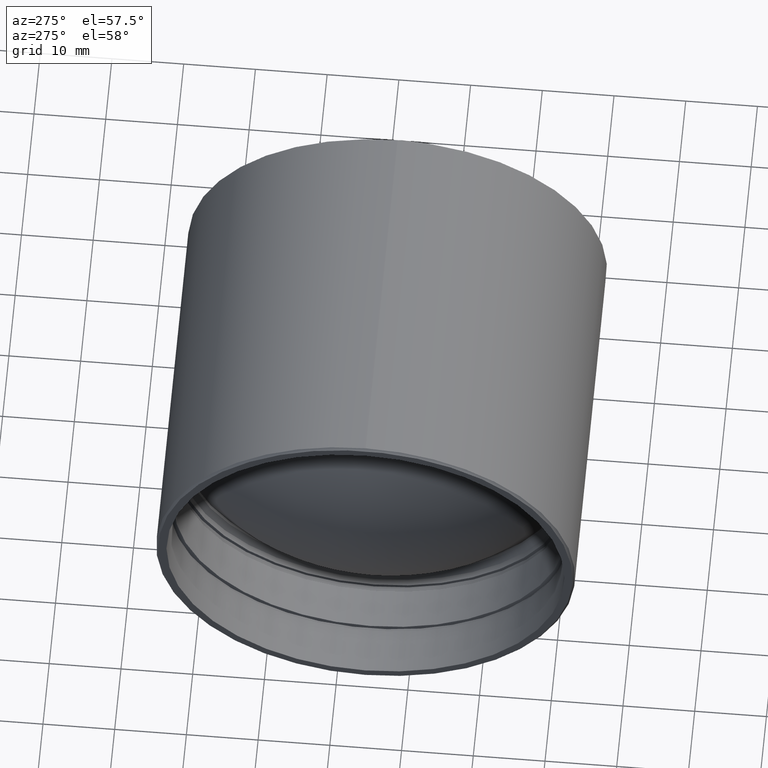
[diagram: clean part render]
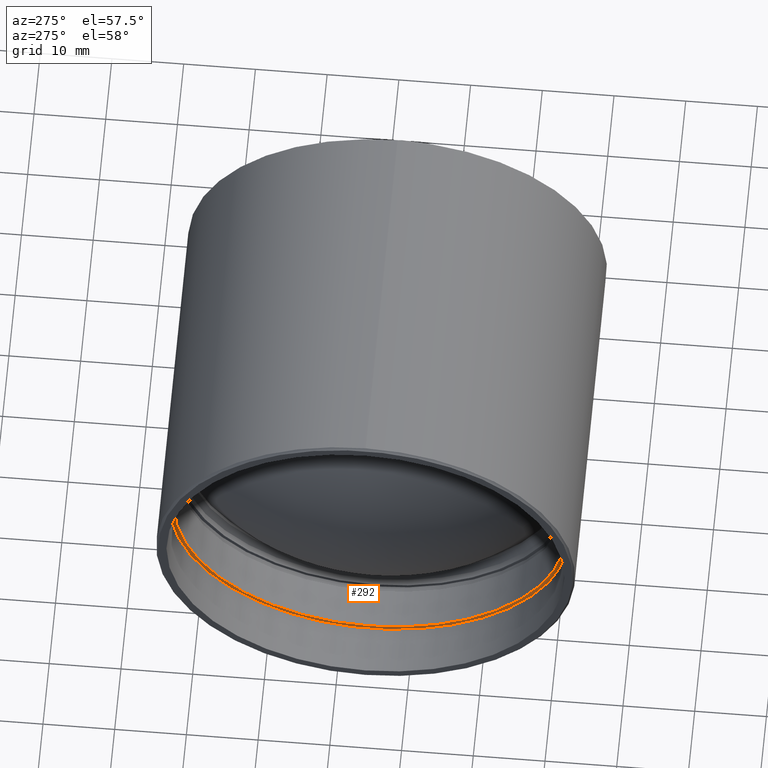
[diagram: same view with one face highlighted and labeled with its STEP entity id]
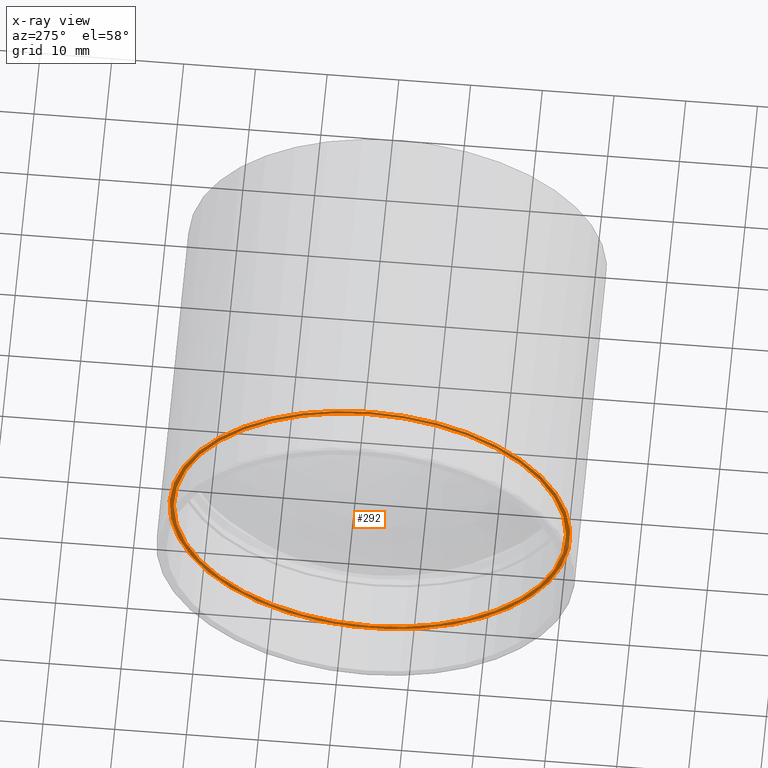
[diagram: x-ray of the same camera — body ghosted, the highlighted face saturated]
A machine part, auxiliary view. The second image highlights one B-rep face of the part: STEP entity #292.
The next image is the same camera in x-ray: the body ghosted, the highlighted face saturated — about 6% of this face is hidden behind the body in this view.
In plain terms, the highlighted planar face has unit normal (-1, 0, 0).
Its self-contained STEP definition (entity closure, byte-faithful):
#17 = EDGE_CURVE ( 'NONE', #149, #149, #90, .T. ) ;
#18 = DIRECTION ( 'NONE',  ( -1.000000000000000000, -0.000000000000000000, -0.000000000000000000 ) ) ;
#74 = DIRECTION ( 'NONE',  ( 0.000000000000000000, 0.000000000000000000, 1.000000000000000000 ) ) ;
#90 = CIRCLE ( 'NONE', #337, 27.95000000004438334 ) ;
#93 = EDGE_CURVE ( 'NONE', #608, #608, #516, .T. ) ;
#109 = FACE_OUTER_BOUND ( 'NONE', #119, .T. ) ;
#116 = CARTESIAN_POINT ( 'NONE',  ( 7877.917387922356284, -4.664664143747144941E-08, 0.000000000000000000 ) ) ;
#119 = EDGE_LOOP ( 'NONE', ( #415 ) ) ;
#149 = VERTEX_POINT ( 'NONE', #152 ) ;
#152 = CARTESIAN_POINT ( 'NONE',  ( 7877.917387922358103, -204.0133481055009383, 27.95000000004438334 ) ) ;
#169 = ORIENTED_EDGE ( 'NONE', *, *, #93, .T. ) ;
#215 = DIRECTION ( 'NONE',  ( -1.000000000000000000, 0.000000000000000000, 0.000000000000000000 ) ) ;
#243 = EDGE_LOOP ( 'NONE', ( #169 ) ) ;
#292 = ADVANCED_FACE ( 'NONE', ( #561, #109 ), #513, .T. ) ;
#309 = DIRECTION ( 'NONE',  ( 0.000000000000000000, 0.000000000000000000, 1.000000000000000000 ) ) ;
#337 = AXIS2_PLACEMENT_3D ( 'NONE', #522, #18, #74 ) ;
#392 = AXIS2_PLACEMENT_3D ( 'NONE', #116, #215, #309 ) ;
#415 = ORIENTED_EDGE ( 'NONE', *, *, #17, .T. ) ;
#423 = CARTESIAN_POINT ( 'NONE',  ( 7877.917387922354465, -204.0133481055009383, 0.000000000000000000 ) ) ;
#502 = AXIS2_PLACEMENT_3D ( 'NONE', #423, #578, #624 ) ;
#513 = PLANE ( 'NONE',  #392 ) ;
#516 = CIRCLE ( 'NONE', #502, 27.35000000000037446 ) ;
#522 = CARTESIAN_POINT ( 'NONE',  ( 7877.917387922358103, -204.0133481055009383, 0.000000000000000000 ) ) ;
#551 = CARTESIAN_POINT ( 'NONE',  ( 7877.917387922354465, -204.0133481055009383, 27.35000000000037446 ) ) ;
#561 = FACE_BOUND ( 'NONE', #243, .T. ) ;
#578 = DIRECTION ( 'NONE',  ( 1.000000000000000000, 0.000000000000000000, 0.000000000000000000 ) ) ;
#608 = VERTEX_POINT ( 'NONE', #551 ) ;
#624 = DIRECTION ( 'NONE',  ( 0.000000000000000000, 0.000000000000000000, 1.000000000000000000 ) ) ;